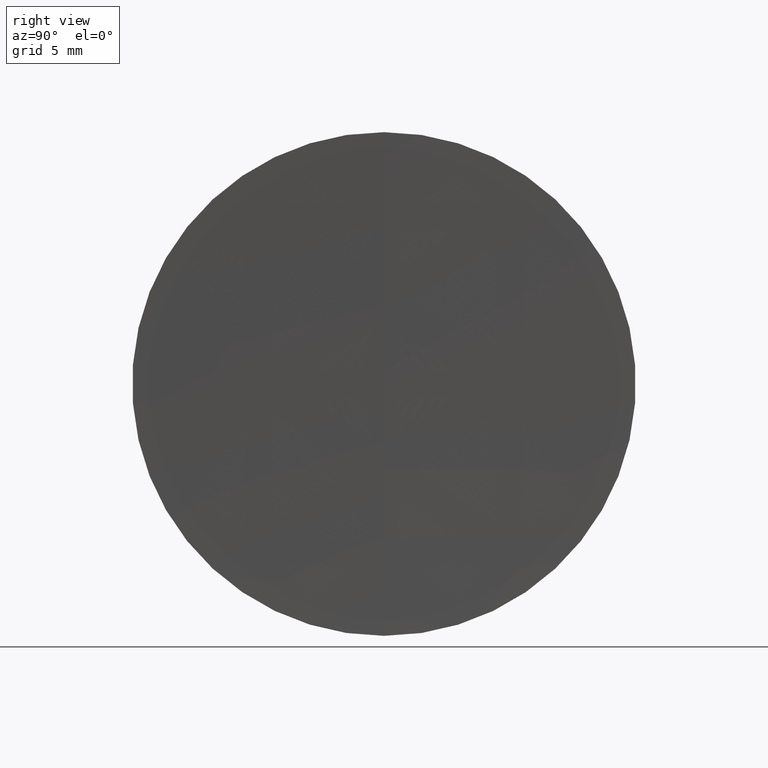
[diagram: clean part render]
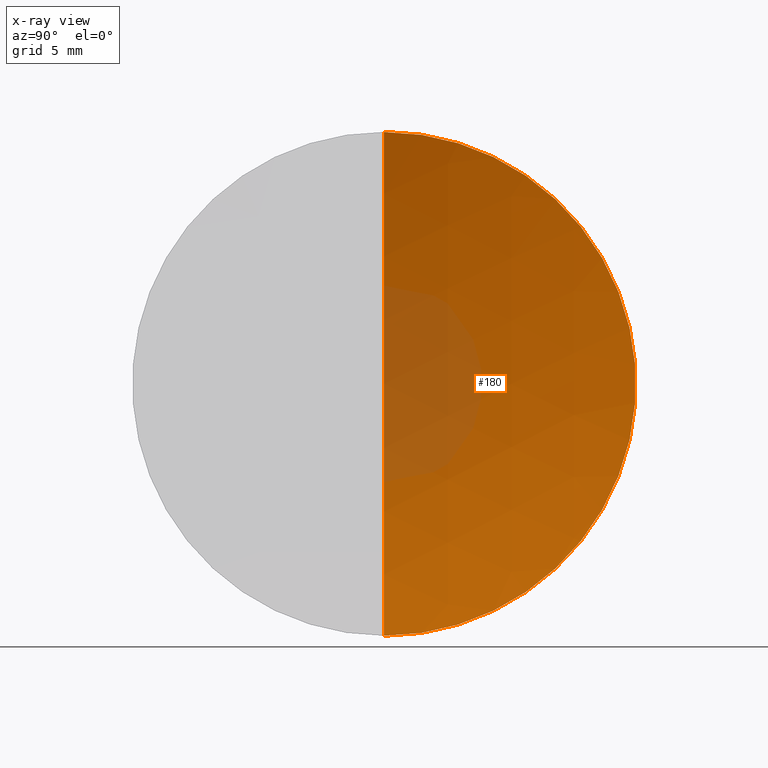
[diagram: x-ray — body ghosted, one internal face saturated and labeled with its STEP entity id]
A machine part, right view, then the same camera in x-ray: the body is ghosted and one INTERNAL B-rep face — a face not visible from any outside direction — is saturated and labeled: STEP entity #180.
In plain terms, the highlighted spherical surface has radius 39.2 mm.
Its self-contained STEP definition (entity closure, byte-faithful):
#2 = SPHERICAL_SURFACE ( 'NONE', #118, 39.20000000000038700 ) ;
#13 = EDGE_LOOP ( 'NONE', ( #109, #281, #149 ) ) ;
#14 = VERTEX_POINT ( 'NONE', #186 ) ;
#16 = CARTESIAN_POINT ( 'NONE',  ( 298.1472495702503800, 0.0000000000000000000, 3.471135893147563700E-022 ) ) ;
#24 = EDGE_CURVE ( 'NONE', #171, #146, #121, .T. ) ;
#68 = AXIS2_PLACEMENT_3D ( 'NONE', #16, #179, #335 ) ;
#81 = FACE_OUTER_BOUND ( 'NONE', #13, .T. ) ;
#91 = EDGE_CURVE ( 'NONE', #146, #14, #230, .T. ) ;
#107 = CARTESIAN_POINT ( 'NONE',  ( 298.1472495702503800, 0.0000000000000000000, 3.471135893147563700E-022 ) ) ;
#109 = ORIENTED_EDGE ( 'NONE', *, *, #24, .F. ) ;
#118 = AXIS2_PLACEMENT_3D ( 'NONE', #224, #255, #253 ) ;
#121 = CIRCLE ( 'NONE', #211, 12.70000000000004700 ) ;
#133 = CARTESIAN_POINT ( 'NONE',  ( 261.0615380360216000, 0.0000000000000000000, -4.810613473023683200E-014 ) ) ;
#136 = CARTESIAN_POINT ( 'NONE',  ( 261.0615380360216000, 1.555301434917144500E-015, -12.70000000000009700 ) ) ;
#146 = VERTEX_POINT ( 'NONE', #136 ) ;
#149 = ORIENTED_EDGE ( 'NONE', *, *, #91, .F. ) ;
#151 = DIRECTION ( 'NONE',  ( -2.249639673992786400E-032, -1.000000000000000000, -1.224646799147353200E-016 ) ) ;
#171 = VERTEX_POINT ( 'NONE', #226 ) ;
#179 = DIRECTION ( 'NONE',  ( -0.0000000000000000000, 1.000000000000000000, 0.0000000000000000000 ) ) ;
#180 = ADVANCED_FACE ( 'NONE', ( #81 ), #2, .F. ) ;
#186 = CARTESIAN_POINT ( 'NONE',  ( 258.9472495702499900, 0.0000000000000000000, 4.800615799771260600E-015 ) ) ;
#211 = AXIS2_PLACEMENT_3D ( 'NONE', #133, #214, #266 ) ;
#214 = DIRECTION ( 'NONE',  ( -1.000000000000000000, -0.0000000000000000000, 1.836970198721029700E-016 ) ) ;
#224 = CARTESIAN_POINT ( 'NONE',  ( 298.1472495702503800, 0.0000000000000000000, 3.471135893147563700E-022 ) ) ;
#226 = CARTESIAN_POINT ( 'NONE',  ( 261.0615380360216000, 0.0000000000000000000, 12.69999999999999900 ) ) ;
#230 = CIRCLE ( 'NONE', #68, 39.20000000000038700 ) ;
#253 = DIRECTION ( 'NONE',  ( 0.0000000000000000000, 0.0000000000000000000, -1.000000000000000000 ) ) ;
#254 = CIRCLE ( 'NONE', #279, 39.20000000000038700 ) ;
#255 = DIRECTION ( 'NONE',  ( -0.0000000000000000000, -1.000000000000000000, -0.0000000000000000000 ) ) ;
#266 = DIRECTION ( 'NONE',  ( 0.0000000000000000000, 0.0000000000000000000, 1.000000000000000000 ) ) ;
#279 = AXIS2_PLACEMENT_3D ( 'NONE', #107, #151, #346 ) ;
#281 = ORIENTED_EDGE ( 'NONE', *, *, #305, .T. ) ;
#305 = EDGE_CURVE ( 'NONE', #171, #14, #254, .T. ) ;
#335 = DIRECTION ( 'NONE',  ( 0.0000000000000000000, 0.0000000000000000000, 1.000000000000000000 ) ) ;
#346 = DIRECTION ( 'NONE',  ( 0.0000000000000000000, 1.224646799147353200E-016, -1.000000000000000000 ) ) ;